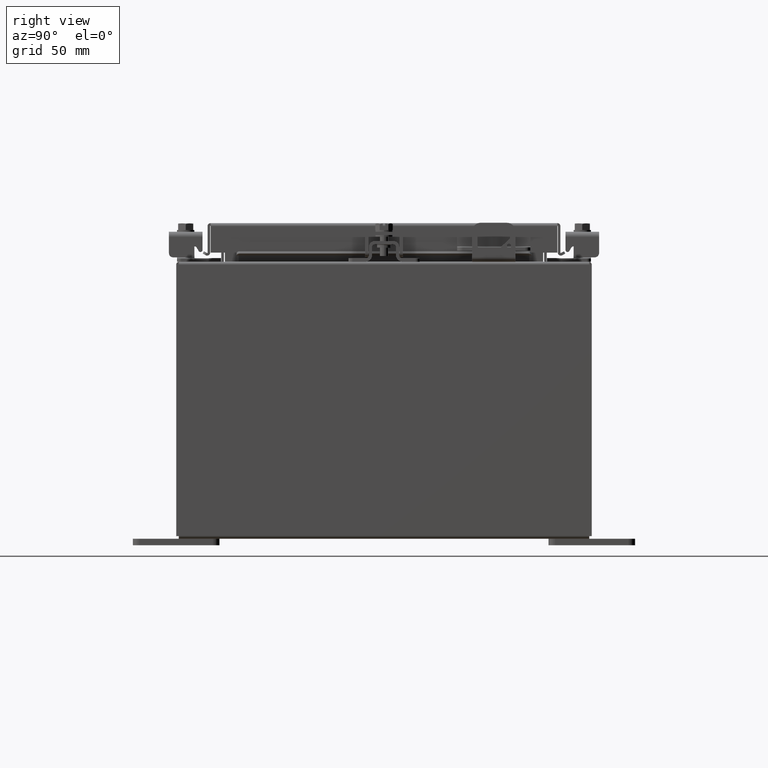
[diagram: clean part render]
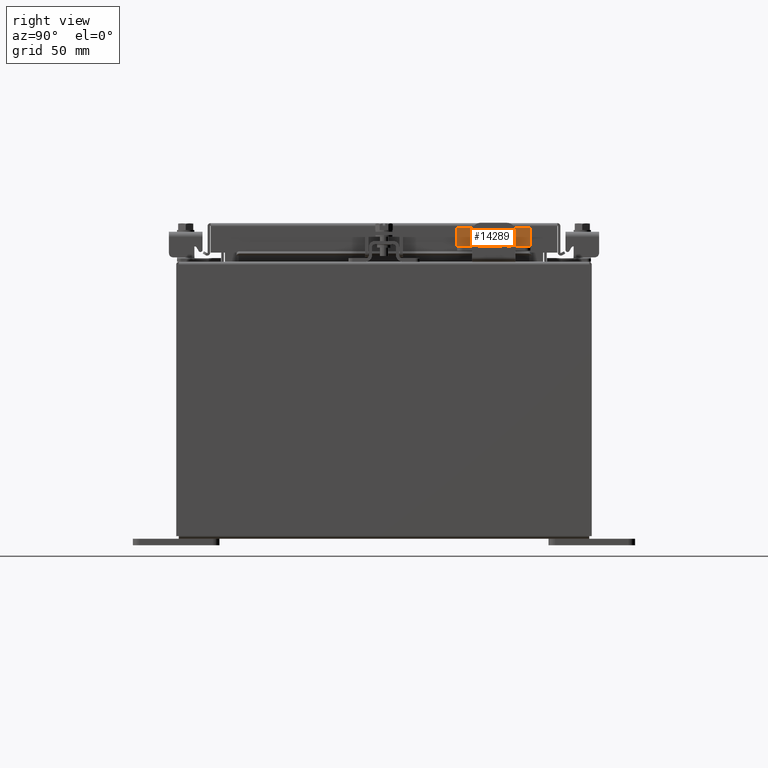
[diagram: same view with one face highlighted and labeled with its STEP entity id]
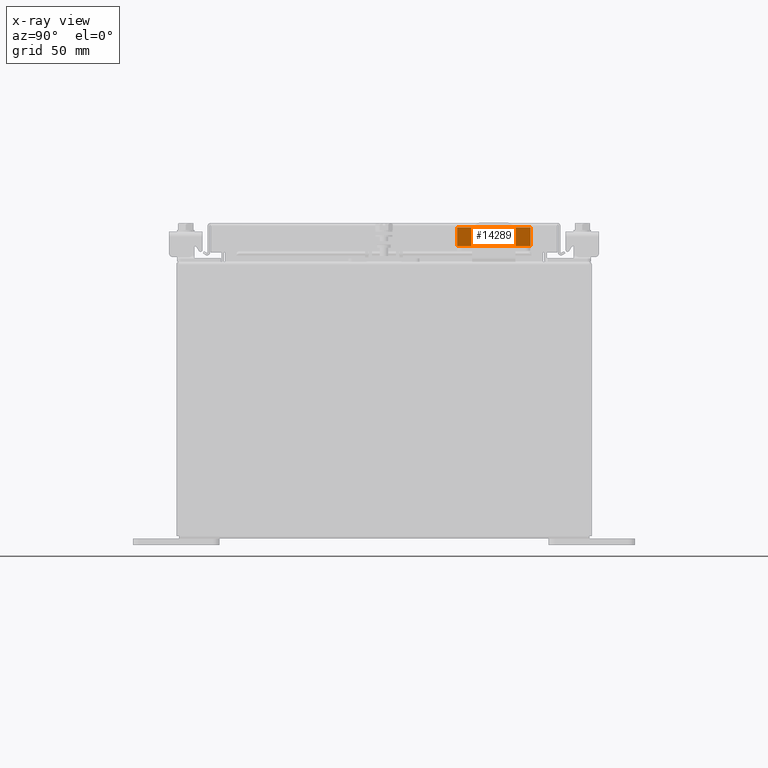
[diagram: x-ray of the same camera — body ghosted, the highlighted face saturated]
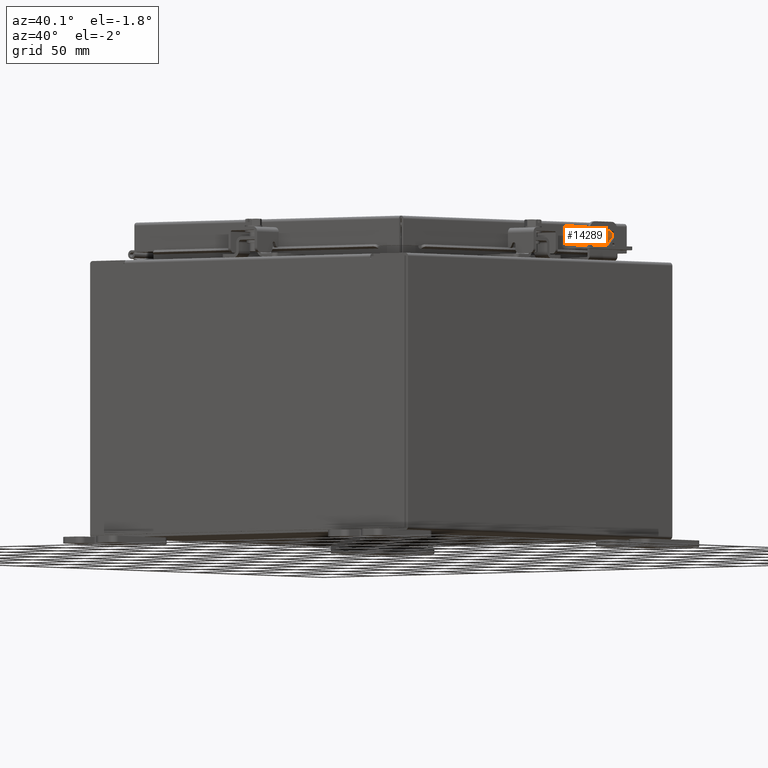
[diagram: same view with one face highlighted and labeled with its STEP entity id]
A machine part, right view. The second image highlights one B-rep face of the part: STEP entity #14289.
The next image is the same camera in x-ray: the body ghosted, the highlighted face saturated — about 0% of this face is hidden behind the body in this view.
A second angle (auxiliary view) of the same face is appended — the face is thin or edge-on in the first view.
In plain terms, the highlighted planar face has unit normal (-1, -0, 0).
Its self-contained STEP definition (entity closure, byte-faithful):
#268 = EDGE_CURVE ( 'NONE', #18623, #11187, #23038, .T. ) ;
#719 = CARTESIAN_POINT ( 'NONE',  ( 0.09999999999999947800, 0.2700000000000001300, 1.059999999999999600 ) ) ;
#855 = CARTESIAN_POINT ( 'NONE',  ( 0.1000000000000005700, -0.2700000000000001300, -1.060000000000005600 ) ) ;
#2100 = FACE_OUTER_BOUND ( 'NONE', #2167, .T. ) ;
#2167 = EDGE_LOOP ( 'NONE', ( #4229, #10449, #9929, #19244 ) ) ;
#3399 = EDGE_CURVE ( 'NONE', #18623, #8727, #12116, .T. ) ;
#3724 = DIRECTION ( 'NONE',  ( 3.944304526105041100E-031, 1.000000000000000000, -7.691393825904831500E-030 ) ) ;
#4229 = ORIENTED_EDGE ( 'NONE', *, *, #268, .F. ) ;
#4934 = CARTESIAN_POINT ( 'NONE',  ( 0.1000000000000005700, -0.2700000000000001300, -1.060000000000005600 ) ) ;
#8187 = LINE ( 'NONE', #20049, #16694 ) ;
#8619 = VECTOR ( 'NONE', #3724, 39.37007874015748100 ) ;
#8727 = VERTEX_POINT ( 'NONE', #4934 ) ;
#9929 = ORIENTED_EDGE ( 'NONE', *, *, #10277, .T. ) ;
#10277 = EDGE_CURVE ( 'NONE', #8727, #13854, #8187, .T. ) ;
#10449 = ORIENTED_EDGE ( 'NONE', *, *, #3399, .T. ) ;
#10733 = DIRECTION ( 'NONE',  ( -1.000000000000000000, 3.944304526105041100E-031, 2.464153218233771800E-030 ) ) ;
#11187 = VERTEX_POINT ( 'NONE', #719 ) ;
#11309 = CARTESIAN_POINT ( 'NONE',  ( 0.09999999999999947800, 0.2700000000000001300, -1.060000000000000300 ) ) ;
#12116 = LINE ( 'NONE', #855, #12683 ) ;
#12297 = EDGE_CURVE ( 'NONE', #11187, #13854, #13484, .T. ) ;
#12683 = VECTOR ( 'NONE', #13503, 39.37007874015748100 ) ;
#13382 = DIRECTION ( 'NONE',  ( -2.464153218233771800E-030, 7.888609052210118100E-030, -1.000000000000000000 ) ) ;
#13484 = LINE ( 'NONE', #22360, #22494 ) ;
#13503 = DIRECTION ( 'NONE',  ( -2.464153218233771800E-030, 7.888609052210118100E-030, -1.000000000000000000 ) ) ;
#13854 = VERTEX_POINT ( 'NONE', #11309 ) ;
#14289 = ADVANCED_FACE ( 'NONE', ( #2100 ), #21533, .F. ) ;
#14557 = CARTESIAN_POINT ( 'NONE',  ( 0.1000000000000005700, -0.2999999999999995400, 1.059999999999994100 ) ) ;
#16694 = VECTOR ( 'NONE', #21851, 39.37007874015748100 ) ;
#17897 = AXIS2_PLACEMENT_3D ( 'NONE', #19733, #10733, #23355 ) ;
#18623 = VERTEX_POINT ( 'NONE', #19537 ) ;
#19244 = ORIENTED_EDGE ( 'NONE', *, *, #12297, .F. ) ;
#19537 = CARTESIAN_POINT ( 'NONE',  ( 0.1000000000000005700, -0.2700000000000001300, 1.059999999999999400 ) ) ;
#19733 = CARTESIAN_POINT ( 'NONE',  ( 0.1000000000000005700, -0.2999999999999995400, 1.059999999999994100 ) ) ;
#20049 = CARTESIAN_POINT ( 'NONE',  ( 0.09999999999999947800, -0.2999999999999995400, -1.060000000000005600 ) ) ;
#21533 = PLANE ( 'NONE',  #17897 ) ;
#21851 = DIRECTION ( 'NONE',  ( 3.944304526105041100E-031, 1.000000000000000000, -7.691393825904831500E-030 ) ) ;
#22360 = CARTESIAN_POINT ( 'NONE',  ( 0.09999999999999947800, 0.2700000000000001300, 1.059999999999999600 ) ) ;
#22494 = VECTOR ( 'NONE', #13382, 39.37007874015748100 ) ;
#23038 = LINE ( 'NONE', #14557, #8619 ) ;
#23355 = DIRECTION ( 'NONE',  ( 2.464153218233771800E-030, -7.888609052210118100E-030, 1.000000000000000000 ) ) ;